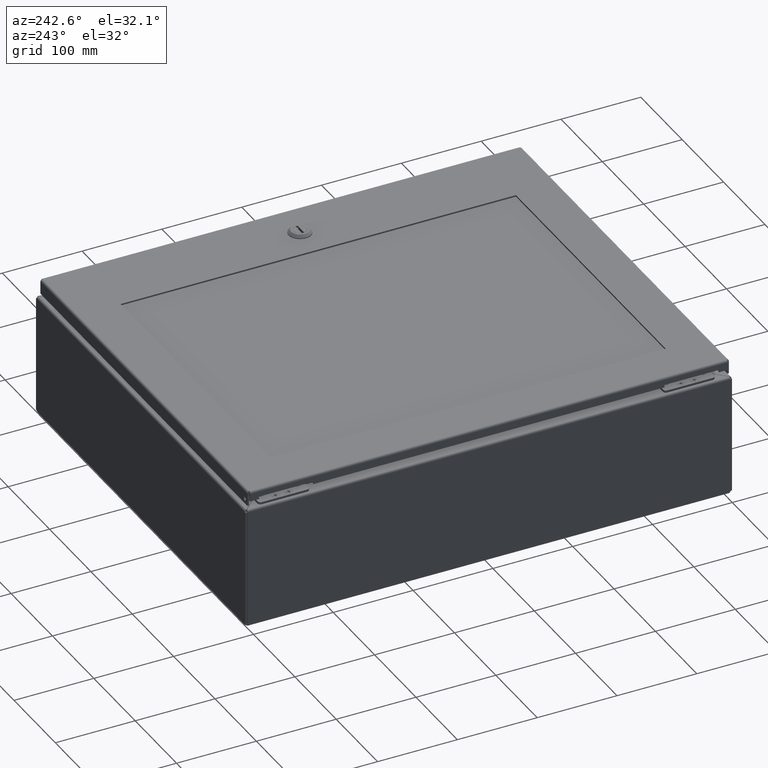
[diagram: clean part render]
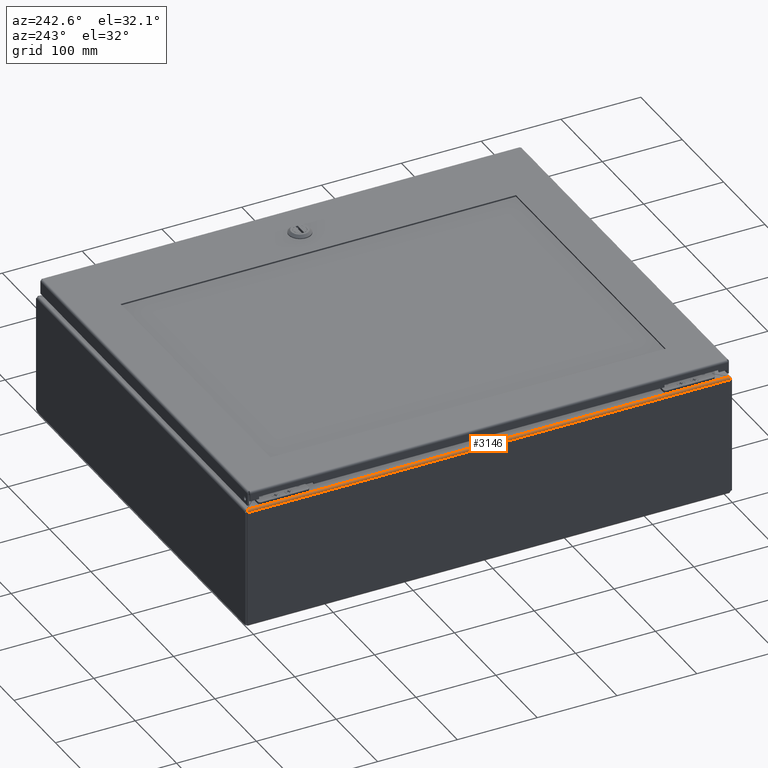
[diagram: same view with one face highlighted and labeled with its STEP entity id]
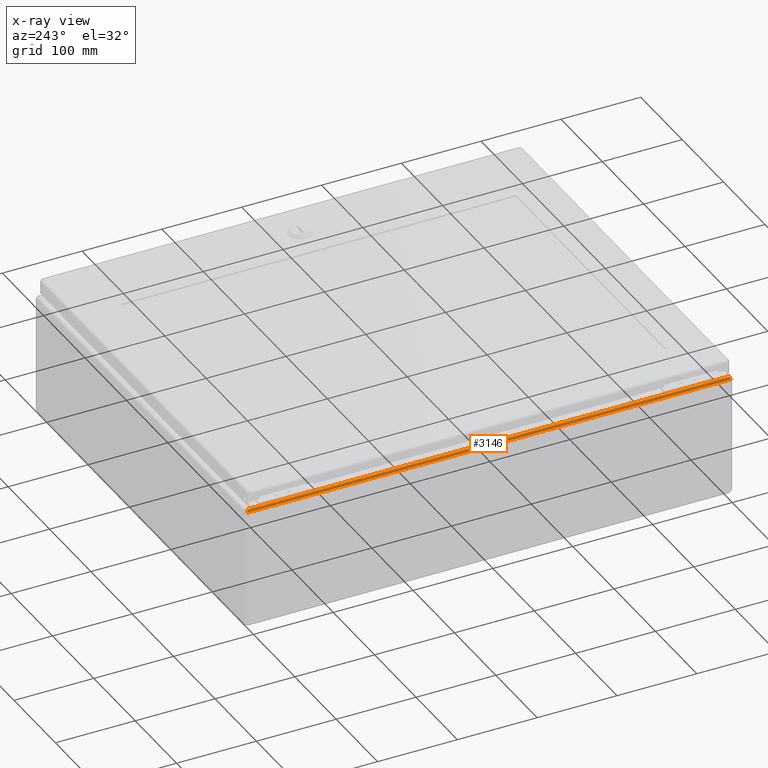
[diagram: x-ray of the same camera — body ghosted, the highlighted face saturated]
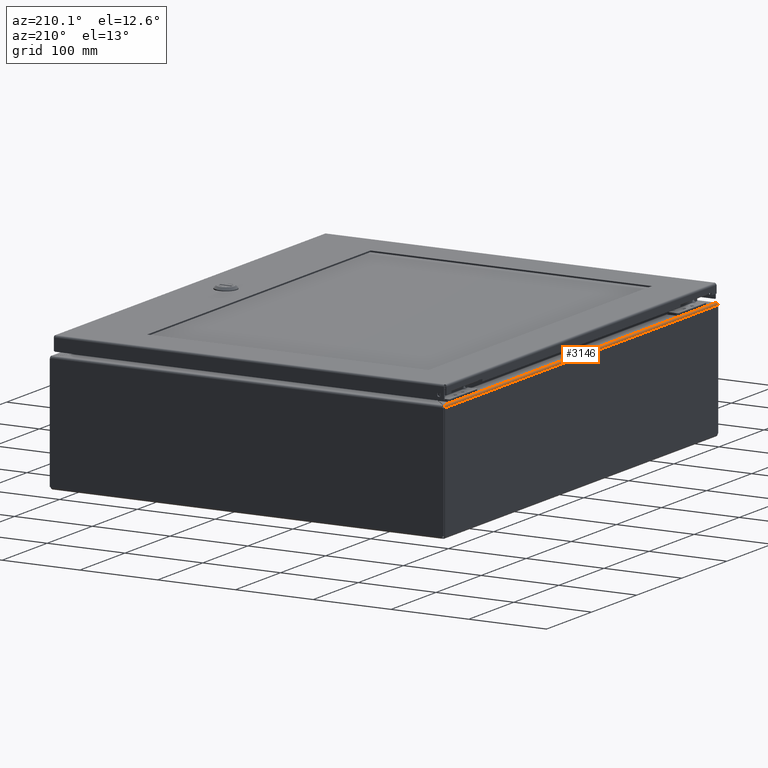
[diagram: same view with one face highlighted and labeled with its STEP entity id]
A machine part, auxiliary view. The second image highlights one B-rep face of the part: STEP entity #3146.
The next image is the same camera in x-ray: the body ghosted, the highlighted face saturated — about 0% of this face is hidden behind the body in this view.
A second angle (auxiliary view) of the same face is appended — the face is thin or edge-on in the first view.
In plain terms, the highlighted cylindrical surface (edge-blend (fillet) strip) has radius 2.6734 mm, axis along (-0, 1, 0).
Its self-contained STEP definition (entity closure, byte-faithful):
#2601=CARTESIAN_POINT('',(0.105250000000020,0.116298543456045,6.000000000000007));
#2602=VERTEX_POINT('',#2601);
#3008=CARTESIAN_POINT('',(0.105250000000012,23.883701456543648,6.000000000000012));
#3009=VERTEX_POINT('',#3008);
#3016=CARTESIAN_POINT('',(0.105250000000011,23.883701456543648,6.000000000000013));
#3017=DIRECTION('',(0.0,-1.0,0.0));
#3018=VECTOR('',#3017,23.767402913087601);
#3019=LINE('',#3016,#3018);
#3020=EDGE_CURVE('',#3009,#2602,#3019,.T.);
#3092=CARTESIAN_POINT('',(6.020993E-015,0.085048543456045,5.894749999999999));
#3093=VERTEX_POINT('',#3092);
#3094=CARTESIAN_POINT('',(0.105250000000021,0.116298543456046,6.000000000000007));
#3095=CARTESIAN_POINT('',(0.073759273639033,0.106948565320361,6.000000000000009));
#3096=CARTESIAN_POINT('',(0.042599340072714,0.097696803572642,5.984905902378166));
#3097=CARTESIAN_POINT('',(0.022966098373526,0.091867456274784,5.960406869718669));
#3098=CARTESIAN_POINT('',(0.008241167099135,0.087495445801391,5.942032595224044));
#3099=CARTESIAN_POINT('',(5.496803E-015,0.085048543456045,5.918368044770739));
#3100=CARTESIAN_POINT('',(5.168656E-015,0.085048543456045,5.894749999999999));
#3101=B_SPLINE_CURVE_WITH_KNOTS('',3,(#3094,#3095,#3096,#3097,#3098,#3099,#3100),.UNSPECIFIED.,.F.,.U.,(4,3,4),(-1.570796326794919,-0.673198425769230,2.499301E-014),.UNSPECIFIED.);
#3102=EDGE_CURVE('',#2602,#3093,#3101,.T.);
#3116=CARTESIAN_POINT('',(0.105250000000008,23.883701456543648,5.894750000000001));
#3117=DIRECTION('',(-3.061421E-016,1.0,1.338675E-016));
#3118=DIRECTION('',(0.0,0.0,1.0));
#3119=AXIS2_PLACEMENT_3D('',#3116,#3117,#3118);
#3120=CYLINDRICAL_SURFACE('',#3119,0.105250000000012);
#3121=ORIENTED_EDGE('',*,*,#3020,.F.);
#3122=CARTESIAN_POINT('',(-2.764630E-015,23.914951456543648,5.894750000000002));
#3123=VERTEX_POINT('',#3122);
#3124=CARTESIAN_POINT('',(-2.104889E-015,23.914951456543648,5.894750000000002));
#3125=CARTESIAN_POINT('',(-1.970898E-015,23.914951456543648,5.910495363180496));
#3126=CARTESIAN_POINT('',(0.003598747670033,23.913882944765135,5.926216678155748));
#3127=CARTESIAN_POINT('',(0.010429710947508,23.911854749017667,5.940398709981285));
#3128=CARTESIAN_POINT('',(0.017260674224984,23.909826553270197,5.954580741806823));
#3129=CARTESIAN_POINT('',(0.027323853109900,23.906838673553771,5.967223490482645));
#3130=CARTESIAN_POINT('',(0.039635893847569,23.903183079510519,5.977019121528721));
#3131=CARTESIAN_POINT('',(0.058103954954073,23.897699688445645,5.991712568097833));
#3132=CARTESIAN_POINT('',(0.081631955229272,23.890713940145410,6.000000000000013));
#3133=CARTESIAN_POINT('',(0.105250000000013,23.883701456543648,6.000000000000012));
#3134=B_SPLINE_CURVE_WITH_KNOTS('',3,(#3124,#3125,#3126,#3127,#3128,#3129,#3130,#3131,#3132,#3133),.UNSPECIFIED.,.F.,.U.,(4,3,3,4),(-3.782572E-014,0.448798950512801,0.897597901025639,1.570796326794887),.UNSPECIFIED.);
#3135=EDGE_CURVE('',#3123,#3009,#3134,.T.);
#3136=ORIENTED_EDGE('',*,*,#3135,.F.);
#3137=CARTESIAN_POINT('',(2.009060E-015,0.085048543456044,5.894750000000000));
#3138=DIRECTION('',(0.0,1.0,0.0));
#3139=VECTOR('',#3138,23.829902913087604);
#3140=LINE('',#3137,#3139);
#3141=EDGE_CURVE('',#3093,#3123,#3140,.T.);
#3142=ORIENTED_EDGE('',*,*,#3141,.F.);
#3143=ORIENTED_EDGE('',*,*,#3102,.F.);
#3144=EDGE_LOOP('',(#3121,#3136,#3142,#3143));
#3145=FACE_OUTER_BOUND('',#3144,.T.);
#3146=ADVANCED_FACE('',(#3145),#3120,.T.);